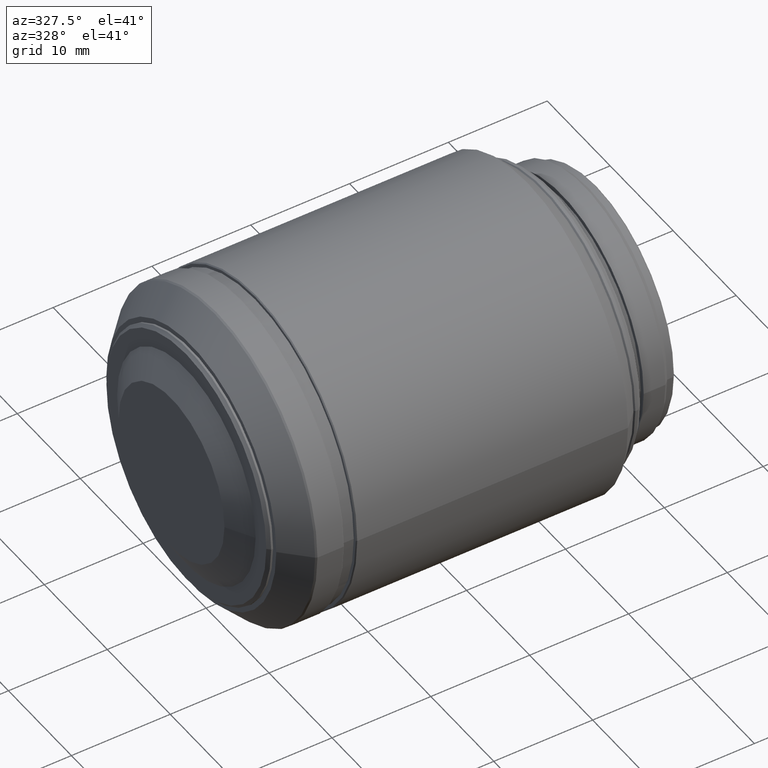
[diagram: clean part render]
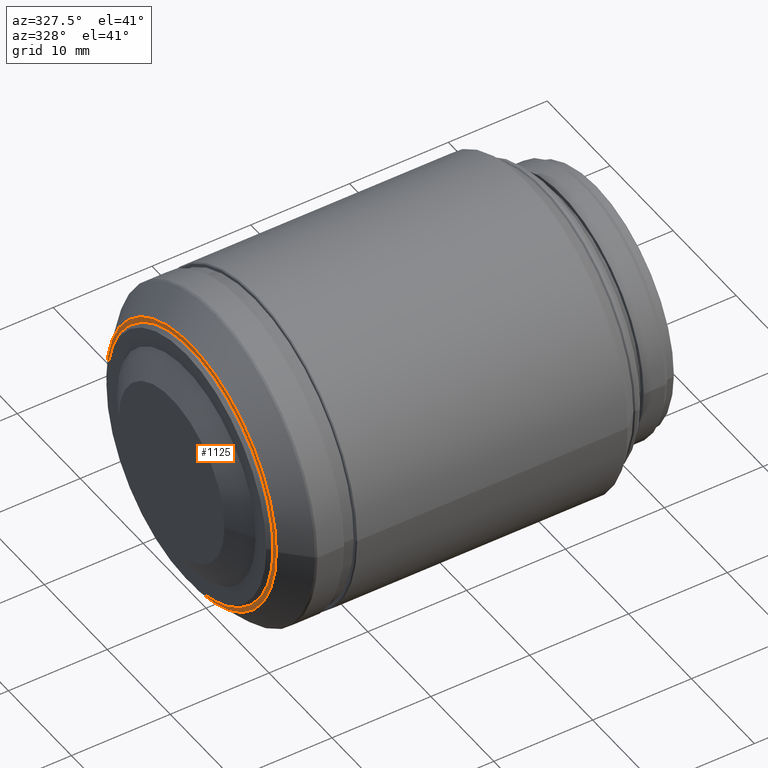
[diagram: same view with one face highlighted and labeled with its STEP entity id]
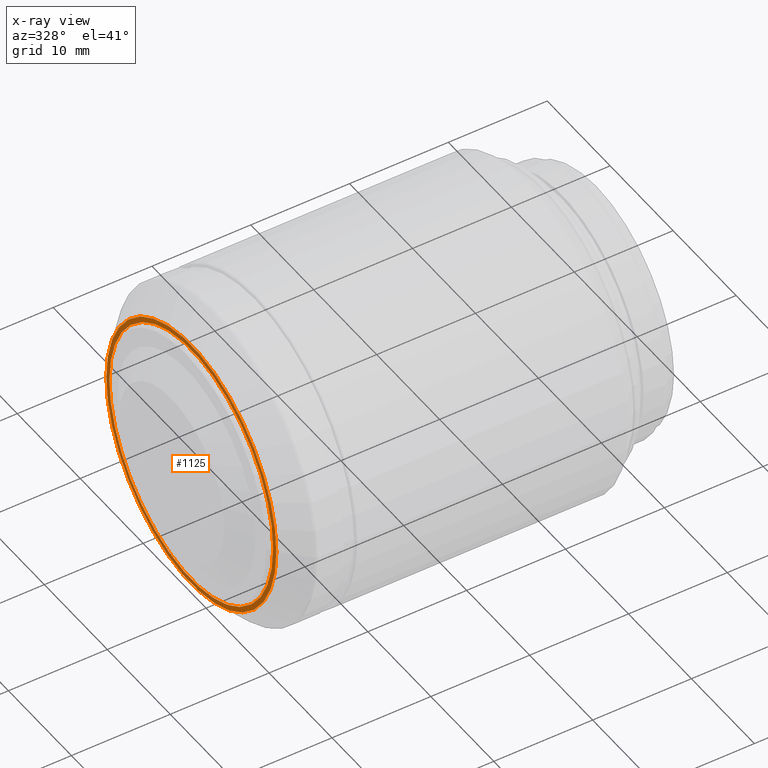
[diagram: x-ray of the same camera — body ghosted, the highlighted face saturated]
A machine part, auxiliary view. The second image highlights one B-rep face of the part: STEP entity #1125.
The next image is the same camera in x-ray: the body ghosted, the highlighted face saturated — about 0% of this face is hidden behind the body in this view.
In plain terms, the highlighted planar face has unit normal (-1, -0, 0).
Its self-contained STEP definition (entity closure, byte-faithful):
#1 = DIRECTION ( 'NONE',  ( -1.000000000000000000, -1.415423776414539960E-16, 0.000000000000000000 ) ) ;
#52 = CARTESIAN_POINT ( 'NONE',  ( -7.740000000000000213, 13.50000000000000000, -1.653273178848930022E-15 ) ) ;
#63 = CIRCLE ( 'NONE', #1441, 13.00000000000000000 ) ;
#173 = EDGE_CURVE ( 'NONE', #1019, #1447, #615, .T. ) ;
#179 = CARTESIAN_POINT ( 'NONE',  ( -7.740000000000000213, -5.166296783913079974E-15, 0.000000000000000000 ) ) ;
#195 = DIRECTION ( 'NONE',  ( 1.000000000000000000, 1.415423776414539960E-16, 0.000000000000000000 ) ) ;
#203 = CARTESIAN_POINT ( 'NONE',  ( -7.740000000000000213, -13.50000000000000000, 0.000000000000000000 ) ) ;
#238 = DIRECTION ( 'NONE',  ( -1.415423776414539960E-16, 1.000000000000000000, 0.000000000000000000 ) ) ;
#262 = VERTEX_POINT ( 'NONE', #719 ) ;
#283 = CARTESIAN_POINT ( 'NONE',  ( -7.740000000000000213, -5.166296783913079974E-15, 0.000000000000000000 ) ) ;
#354 = CIRCLE ( 'NONE', #868, 13.50000000000000000 ) ;
#404 = CIRCLE ( 'NONE', #1189, 13.00000000000000000 ) ;
#485 = FACE_BOUND ( 'NONE', #715, .T. ) ;
#535 = EDGE_LOOP ( 'NONE', ( #1280, #985 ) ) ;
#577 = CARTESIAN_POINT ( 'NONE',  ( -7.740000000000000213, -5.166296783913079974E-15, 0.000000000000000000 ) ) ;
#579 = ORIENTED_EDGE ( 'NONE', *, *, #1326, .T. ) ;
#615 = CIRCLE ( 'NONE', #641, 13.50000000000000000 ) ;
#641 = AXIS2_PLACEMENT_3D ( 'NONE', #179, #787, #801 ) ;
#653 = DIRECTION ( 'NONE',  ( -1.284980352575412699E-16, 1.000000000000000000, 0.000000000000000000 ) ) ;
#656 = EDGE_CURVE ( 'NONE', #1447, #1019, #354, .T. ) ;
#710 = DIRECTION ( 'NONE',  ( 1.000000000000000000, 1.415423776414539960E-16, 0.000000000000000000 ) ) ;
#715 = EDGE_LOOP ( 'NONE', ( #1482, #579 ) ) ;
#719 = CARTESIAN_POINT ( 'NONE',  ( -7.740000000000000213, -13.00000000000000000, 0.000000000000000000 ) ) ;
#766 = EDGE_CURVE ( 'NONE', #262, #880, #63, .T. ) ;
#787 = DIRECTION ( 'NONE',  ( 1.000000000000000000, 1.415423776414539960E-16, 0.000000000000000000 ) ) ;
#801 = DIRECTION ( 'NONE',  ( -1.284980352575412699E-16, 1.000000000000000000, 0.000000000000000000 ) ) ;
#868 = AXIS2_PLACEMENT_3D ( 'NONE', #1372, #195, #653 ) ;
#880 = VERTEX_POINT ( 'NONE', #1454 ) ;
#982 = DIRECTION ( 'NONE',  ( 1.000000000000000000, 1.415423776414539960E-16, 0.000000000000000000 ) ) ;
#985 = ORIENTED_EDGE ( 'NONE', *, *, #656, .F. ) ;
#1019 = VERTEX_POINT ( 'NONE', #203 ) ;
#1051 = FACE_OUTER_BOUND ( 'NONE', #535, .T. ) ;
#1090 = AXIS2_PLACEMENT_3D ( 'NONE', #1187, #1, #238 ) ;
#1125 = ADVANCED_FACE ( 'NONE', ( #1051, #485 ), #1311, .T. ) ;
#1179 = DIRECTION ( 'NONE',  ( -1.334402673828313093E-16, 1.000000000000000000, 0.000000000000000000 ) ) ;
#1187 = CARTESIAN_POINT ( 'NONE',  ( -7.740000000000000213, 13.25000000000000000, 0.000000000000000000 ) ) ;
#1189 = AXIS2_PLACEMENT_3D ( 'NONE', #283, #982, #1330 ) ;
#1280 = ORIENTED_EDGE ( 'NONE', *, *, #173, .F. ) ;
#1311 = PLANE ( 'NONE',  #1090 ) ;
#1326 = EDGE_CURVE ( 'NONE', #880, #262, #404, .T. ) ;
#1330 = DIRECTION ( 'NONE',  ( -1.334402673828313093E-16, 1.000000000000000000, 0.000000000000000000 ) ) ;
#1372 = CARTESIAN_POINT ( 'NONE',  ( -7.740000000000000213, -5.166296783913079974E-15, 0.000000000000000000 ) ) ;
#1441 = AXIS2_PLACEMENT_3D ( 'NONE', #577, #710, #1179 ) ;
#1447 = VERTEX_POINT ( 'NONE', #52 ) ;
#1454 = CARTESIAN_POINT ( 'NONE',  ( -7.740000000000000213, 13.00000000000000000, -1.592040838891559884E-15 ) ) ;
#1482 = ORIENTED_EDGE ( 'NONE', *, *, #766, .T. ) ;